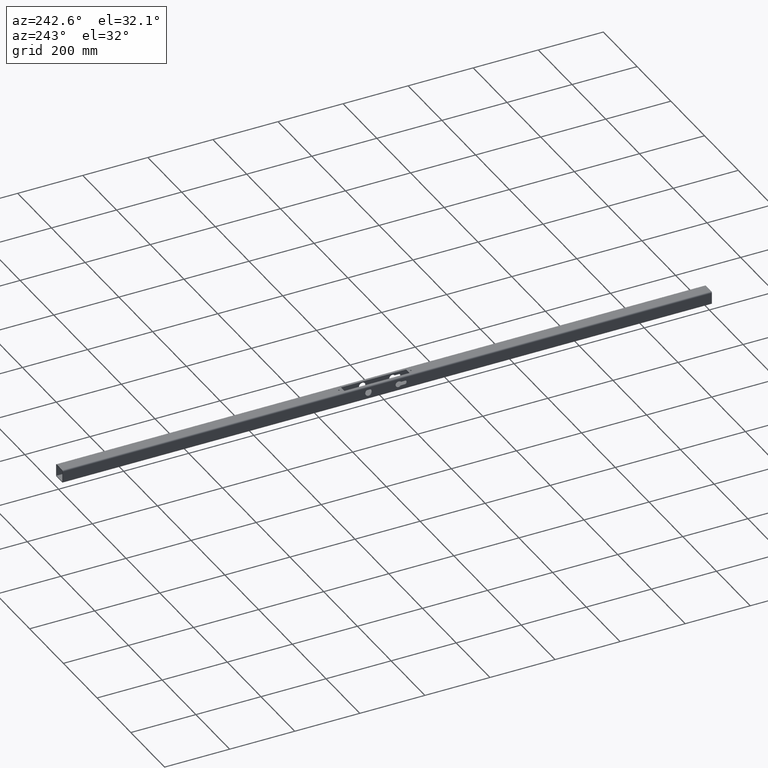
[diagram: clean part render]
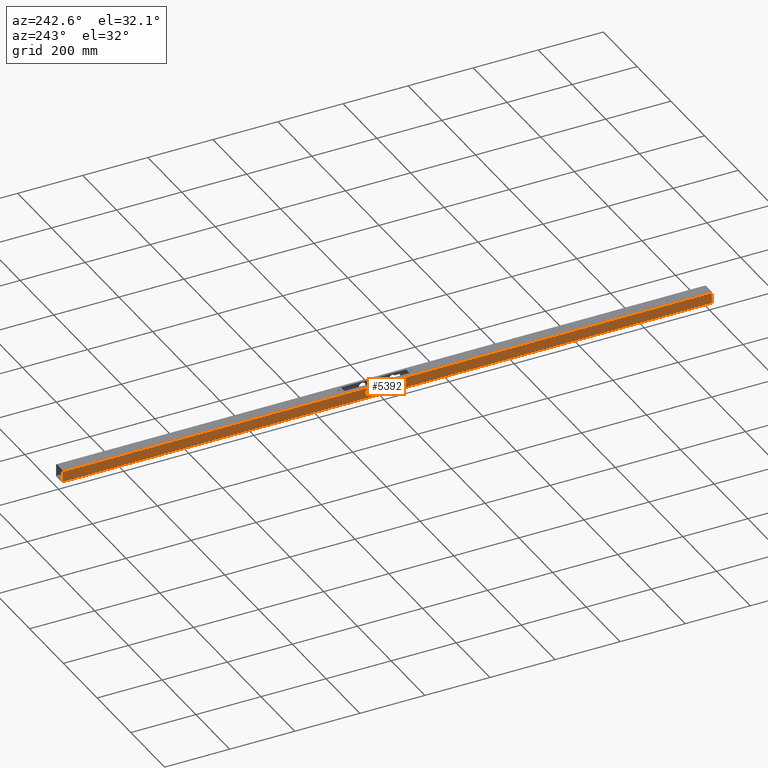
[diagram: same view with one face highlighted and labeled with its STEP entity id]
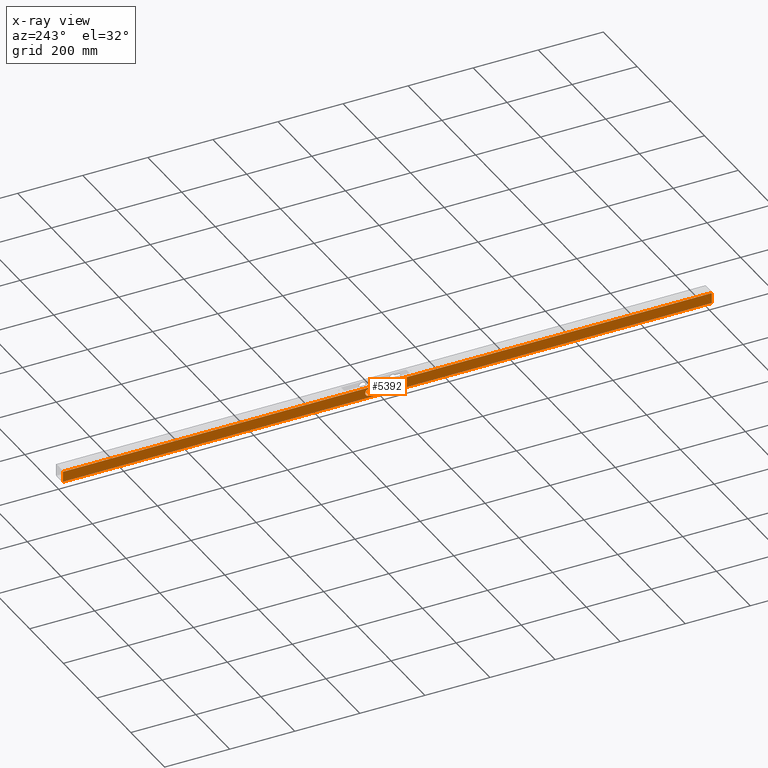
[diagram: x-ray of the same camera — body ghosted, the highlighted face saturated]
A machine part, auxiliary view. The second image highlights one B-rep face of the part: STEP entity #5392.
The next image is the same camera in x-ray: the body ghosted, the highlighted face saturated — about 0% of this face is hidden behind the body in this view.
In plain terms, the highlighted planar face has unit normal (1, 0, -0).
Its self-contained STEP definition (entity closure, byte-faithful):
#644 = ORIENTED_EDGE ( 'NONE', *, *, #9640, .F. ) ;
#693 = DIRECTION ( 'NONE',  ( 0.000000000000000000, 0.000000000000000000, -1.000000000000000000 ) ) ;
#736 = ORIENTED_EDGE ( 'NONE', *, *, #8972, .T. ) ;
#753 = AXIS2_PLACEMENT_3D ( 'NONE', #12166, #9548, #693 ) ;
#761 = EDGE_CURVE ( 'NONE', #8647, #11340, #8434, .T. ) ;
#820 = EDGE_CURVE ( 'NONE', #3670, #3670, #8730, .T. ) ;
#897 = EDGE_LOOP ( 'NONE', ( #4748, #8530, #644, #3951 ) ) ;
#950 = AXIS2_PLACEMENT_3D ( 'NONE', #8029, #1023, #5057 ) ;
#1023 = DIRECTION ( 'NONE',  ( 1.000000000000000000, 0.000000000000000000, 0.000000000000000000 ) ) ;
#1076 = ORIENTED_EDGE ( 'NONE', *, *, #8799, .T. ) ;
#1145 = DIRECTION ( 'NONE',  ( 2.168404344971008868E-16, 0.000000000000000000, 1.000000000000000000 ) ) ;
#1165 = DIRECTION ( 'NONE',  ( -2.168404344971008868E-16, 0.000000000000000000, -1.000000000000000000 ) ) ;
#1323 = FACE_BOUND ( 'NONE', #3319, .T. ) ;
#1358 = LINE ( 'NONE', #2443, #8898 ) ;
#1894 = CIRCLE ( 'NONE', #753, 5.650000000000001243 ) ;
#1946 = FACE_OUTER_BOUND ( 'NONE', #897, .T. ) ;
#2185 = LINE ( 'NONE', #4200, #6472 ) ;
#2443 = CARTESIAN_POINT ( 'NONE',  ( -20.00000000000000000, 997.5000000000000000, -16.00000000000000355 ) ) ;
#2574 = DIRECTION ( 'NONE',  ( 1.000000000000000000, 0.000000000000000000, 0.000000000000000000 ) ) ;
#2698 = CARTESIAN_POINT ( 'NONE',  ( -20.00000000000000000, -54.69999999999989626, 6.149999999999998579 ) ) ;
#2855 = EDGE_CURVE ( 'NONE', #4065, #8647, #1358, .T. ) ;
#3093 = CARTESIAN_POINT ( 'NONE',  ( -20.00000000000000000, -997.5000000000000000, -16.00000000000000355 ) ) ;
#3236 = CARTESIAN_POINT ( 'NONE',  ( -20.00000000000000000, -54.69999999999989626, 6.149999999999998579 ) ) ;
#3288 = VERTEX_POINT ( 'NONE', #2698 ) ;
#3319 = EDGE_LOOP ( 'NONE', ( #4842, #11506, #1076, #736 ) ) ;
#3418 = DIRECTION ( 'NONE',  ( -0.000000000000000000, -1.000000000000000000, -0.000000000000000000 ) ) ;
#3670 = VERTEX_POINT ( 'NONE', #6246 ) ;
#3697 = EDGE_CURVE ( 'NONE', #10579, #11340, #6898, .T. ) ;
#3811 = VECTOR ( 'NONE', #1145, 1000.000000000000000 ) ;
#3913 = CARTESIAN_POINT ( 'NONE',  ( -20.00000000000000000, -997.5000000000000000, -16.00000000000000355 ) ) ;
#3951 = ORIENTED_EDGE ( 'NONE', *, *, #2855, .T. ) ;
#4065 = VERTEX_POINT ( 'NONE', #4288 ) ;
#4163 = CIRCLE ( 'NONE', #8152, 9.149999999999998579 ) ;
#4200 = CARTESIAN_POINT ( 'NONE',  ( -20.00000000000000000, -41.69722168617852276, -5.150000000000002132 ) ) ;
#4288 = CARTESIAN_POINT ( 'NONE',  ( -20.00000000000000000, 997.5000000000000000, -16.00000000000000355 ) ) ;
#4365 = CARTESIAN_POINT ( 'NONE',  ( -19.99999999999999645, -997.5000000000000000, 15.99999999999999645 ) ) ;
#4748 = ORIENTED_EDGE ( 'NONE', *, *, #761, .T. ) ;
#4842 = ORIENTED_EDGE ( 'NONE', *, *, #5461, .T. ) ;
#5057 = DIRECTION ( 'NONE',  ( 0.000000000000000000, 0.000000000000000000, -1.000000000000000000 ) ) ;
#5199 = VERTEX_POINT ( 'NONE', #8477 ) ;
#5392 = ADVANCED_FACE ( 'NONE', ( #1323, #11334, #1946 ), #8124, .F. ) ;
#5461 = EDGE_CURVE ( 'NONE', #5199, #3288, #7926, .T. ) ;
#5713 = VECTOR ( 'NONE', #9843, 1000.000000000000000 ) ;
#5825 = CARTESIAN_POINT ( 'NONE',  ( -20.00000000000000000, 997.5000000000000000, -16.00000000000000355 ) ) ;
#6034 = ORIENTED_EDGE ( 'NONE', *, *, #820, .T. ) ;
#6166 = EDGE_LOOP ( 'NONE', ( #6034 ) ) ;
#6246 = CARTESIAN_POINT ( 'NONE',  ( -20.00000000000000000, 57.50000000000010658, -10.00000000000001066 ) ) ;
#6472 = VECTOR ( 'NONE', #10222, 1000.000000000000000 ) ;
#6608 = DIRECTION ( 'NONE',  ( 0.000000000000000000, 0.000000000000000000, -1.000000000000000000 ) ) ;
#6886 = CARTESIAN_POINT ( 'NONE',  ( -19.99999999999999645, -41.69722168617839486, -5.150000000000002132 ) ) ;
#6898 = LINE ( 'NONE', #9779, #8873 ) ;
#7205 = DIRECTION ( 'NONE',  ( 1.000000000000000000, 0.000000000000000000, -2.168404344971008868E-16 ) ) ;
#7227 = CARTESIAN_POINT ( 'NONE',  ( -20.00000000000000000, -54.69999999999989626, -5.150000000000004796 ) ) ;
#7295 = EDGE_CURVE ( 'NONE', #3288, #10096, #1894, .T. ) ;
#7444 = VERTEX_POINT ( 'NONE', #6886 ) ;
#7782 = VECTOR ( 'NONE', #11004, 1000.000000000000000 ) ;
#7926 = LINE ( 'NONE', #3236, #7782 ) ;
#8029 = CARTESIAN_POINT ( 'NONE',  ( -20.00000000000000000, 57.50000000000010658, 0.4999999999999970024 ) ) ;
#8124 = PLANE ( 'NONE',  #10072 ) ;
#8152 = AXIS2_PLACEMENT_3D ( 'NONE', #11456, #2574, #6608 ) ;
#8313 = LINE ( 'NONE', #5825, #5713 ) ;
#8434 = LINE ( 'NONE', #3093, #3811 ) ;
#8477 = CARTESIAN_POINT ( 'NONE',  ( -20.00000000000000000, -41.69722168617852276, 6.149999999999997691 ) ) ;
#8530 = ORIENTED_EDGE ( 'NONE', *, *, #3697, .F. ) ;
#8647 = VERTEX_POINT ( 'NONE', #3913 ) ;
#8687 = CARTESIAN_POINT ( 'NONE',  ( -19.99999999999999645, 997.5000000000000000, 15.99999999999999645 ) ) ;
#8705 = DIRECTION ( 'NONE',  ( -0.000000000000000000, -1.000000000000000000, -0.000000000000000000 ) ) ;
#8730 = CIRCLE ( 'NONE', #950, 10.50000000000000711 ) ;
#8799 = EDGE_CURVE ( 'NONE', #10096, #7444, #2185, .T. ) ;
#8873 = VECTOR ( 'NONE', #8705, 1000.000000000000000 ) ;
#8898 = VECTOR ( 'NONE', #3418, 1000.000000000000000 ) ;
#8972 = EDGE_CURVE ( 'NONE', #7444, #5199, #4163, .T. ) ;
#9548 = DIRECTION ( 'NONE',  ( 1.000000000000000000, 0.000000000000000000, 0.000000000000000000 ) ) ;
#9640 = EDGE_CURVE ( 'NONE', #4065, #10579, #8313, .T. ) ;
#9779 = CARTESIAN_POINT ( 'NONE',  ( -19.99999999999999645, 997.5000000000000000, 15.99999999999999645 ) ) ;
#9843 = DIRECTION ( 'NONE',  ( 2.168404344971008868E-16, 0.000000000000000000, 1.000000000000000000 ) ) ;
#10072 = AXIS2_PLACEMENT_3D ( 'NONE', #10184, #7205, #1165 ) ;
#10096 = VERTEX_POINT ( 'NONE', #7227 ) ;
#10184 = CARTESIAN_POINT ( 'NONE',  ( -20.00000000000000000, 997.5000000000000000, -16.00000000000000355 ) ) ;
#10222 = DIRECTION ( 'NONE',  ( -0.000000000000000000, 1.000000000000000000, 2.001176326446564495E-16 ) ) ;
#10579 = VERTEX_POINT ( 'NONE', #8687 ) ;
#11004 = DIRECTION ( 'NONE',  ( -0.000000000000000000, -1.000000000000000000, 6.670587754821882060E-17 ) ) ;
#11334 = FACE_BOUND ( 'NONE', #6166, .T. ) ;
#11340 = VERTEX_POINT ( 'NONE', #4365 ) ;
#11456 = CARTESIAN_POINT ( 'NONE',  ( -20.00000000000000000, -34.49999999999989342, 0.4999999999999970024 ) ) ;
#11506 = ORIENTED_EDGE ( 'NONE', *, *, #7295, .T. ) ;
#12166 = CARTESIAN_POINT ( 'NONE',  ( -20.00000000000000000, -54.69999999999989626, 0.4999999999999970024 ) ) ;